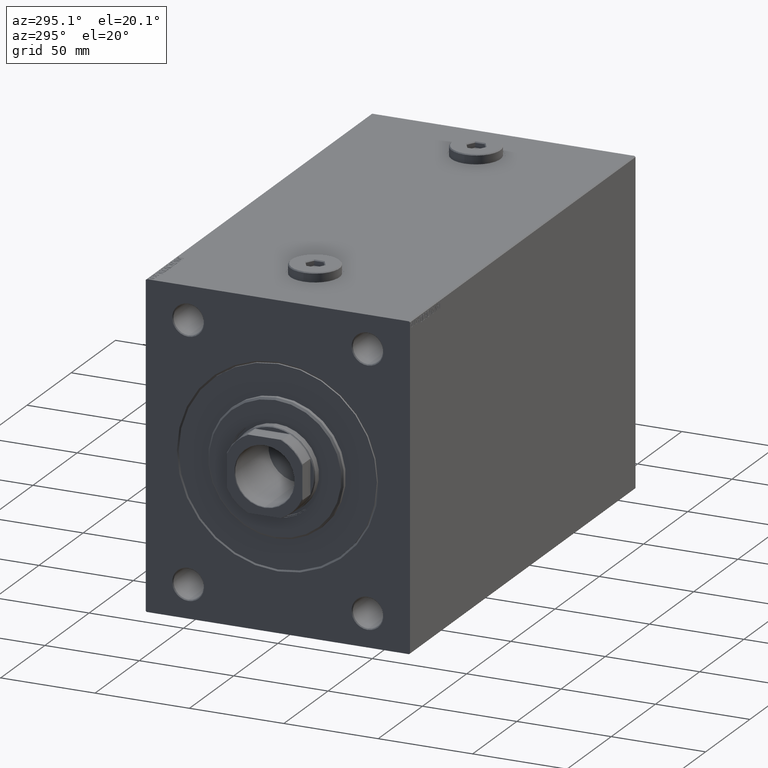
[diagram: clean part render]
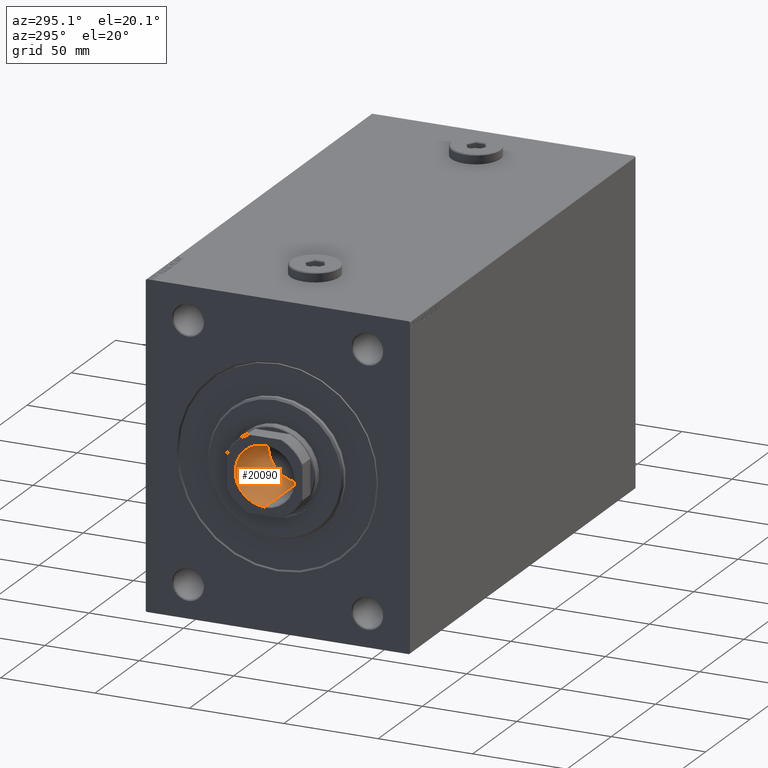
[diagram: same view with one face highlighted and labeled with its STEP entity id]
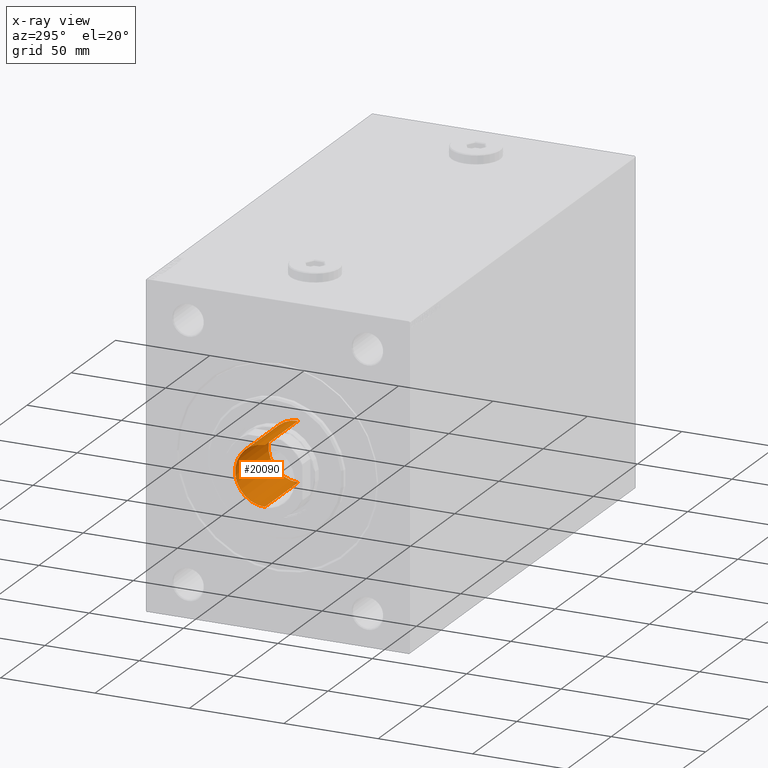
[diagram: x-ray of the same camera — body ghosted, the highlighted face saturated]
A machine part, auxiliary view. The second image highlights one B-rep face of the part: STEP entity #20090.
The next image is the same camera in x-ray: the body ghosted, the highlighted face saturated — about 1% of this face is hidden behind the body in this view.
In plain terms, the highlighted cylindrical surface (edge-blend (fillet) strip) has radius 15.75 mm, axis along (-1, 0, 0).
Its self-contained STEP definition (entity closure, byte-faithful):
#1025 = EDGE_CURVE ( 'NONE', #8817, #5963, #23313, .T. ) ;
#1537 = CARTESIAN_POINT ( 'NONE',  ( 15.74999999999999289, 0.000000000000000000, 206.0000000000000284 ) ) ;
#2769 = DIRECTION ( 'NONE',  ( -0.000000000000000000, -0.000000000000000000, 1.000000000000000000 ) ) ;
#5963 = VERTEX_POINT ( 'NONE', #41206 ) ;
#6046 = VECTOR ( 'NONE', #30828, 1000.000000000000000 ) ;
#6052 = CARTESIAN_POINT ( 'NONE',  ( 15.74999999999999289, 0.000000000000000000, 243.6999999999999602 ) ) ;
#6255 = VERTEX_POINT ( 'NONE', #6052 ) ;
#6469 = CYLINDRICAL_SURFACE ( 'NONE', #27394, 15.74999999999999289 ) ;
#6989 = CARTESIAN_POINT ( 'NONE',  ( -15.74999999999999289, 1.928818708657080556E-15, 243.6999999999999602 ) ) ;
#8713 = VECTOR ( 'NONE', #34461, 1000.000000000000000 ) ;
#8745 = AXIS2_PLACEMENT_3D ( 'NONE', #24151, #41498, #10302 ) ;
#8814 = ORIENTED_EDGE ( 'NONE', *, *, #19584, .T. ) ;
#8817 = VERTEX_POINT ( 'NONE', #1537 ) ;
#9697 = CARTESIAN_POINT ( 'NONE',  ( 0.000000000000000000, 0.000000000000000000, 244.0000000000000284 ) ) ;
#10302 = DIRECTION ( 'NONE',  ( 1.000000000000000000, 0.000000000000000000, 0.000000000000000000 ) ) ;
#10567 = ORIENTED_EDGE ( 'NONE', *, *, #44106, .T. ) ;
#12989 = CARTESIAN_POINT ( 'NONE',  ( -15.74999999999999289, 1.928818708657080556E-15, 244.0000000000000284 ) ) ;
#14654 = DIRECTION ( 'NONE',  ( -0.000000000000000000, -0.000000000000000000, 1.000000000000000000 ) ) ;
#14666 = ORIENTED_EDGE ( 'NONE', *, *, #1025, .F. ) ;
#16619 = FACE_OUTER_BOUND ( 'NONE', #37180, .T. ) ;
#19584 = EDGE_CURVE ( 'NONE', #8817, #6255, #37771, .T. ) ;
#20090 = ADVANCED_FACE ( 'NONE', ( #16619 ), #6469, .F. ) ;
#22700 = VERTEX_POINT ( 'NONE', #6989 ) ;
#23313 = CIRCLE ( 'NONE', #35133, 15.74999999999999289 ) ;
#24151 = CARTESIAN_POINT ( 'NONE',  ( 0.000000000000000000, 0.000000000000000000, 243.6999999999999602 ) ) ;
#24703 = DIRECTION ( 'NONE',  ( 1.000000000000000000, 0.000000000000000000, 0.000000000000000000 ) ) ;
#27394 = AXIS2_PLACEMENT_3D ( 'NONE', #9697, #2769, #24703 ) ;
#28644 = CIRCLE ( 'NONE', #8745, 15.74999999999999289 ) ;
#30828 = DIRECTION ( 'NONE',  ( -0.000000000000000000, -0.000000000000000000, 1.000000000000000000 ) ) ;
#33345 = CARTESIAN_POINT ( 'NONE',  ( 0.000000000000000000, 0.000000000000000000, 206.0000000000000284 ) ) ;
#34292 = CARTESIAN_POINT ( 'NONE',  ( 15.74999999999999289, 0.000000000000000000, 244.0000000000000284 ) ) ;
#34461 = DIRECTION ( 'NONE',  ( -0.000000000000000000, -0.000000000000000000, 1.000000000000000000 ) ) ;
#35133 = AXIS2_PLACEMENT_3D ( 'NONE', #33345, #14654, #42851 ) ;
#37180 = EDGE_LOOP ( 'NONE', ( #38136, #14666, #8814, #10567 ) ) ;
#37771 = LINE ( 'NONE', #34292, #6046 ) ;
#38136 = ORIENTED_EDGE ( 'NONE', *, *, #39673, .F. ) ;
#39673 = EDGE_CURVE ( 'NONE', #5963, #22700, #41633, .T. ) ;
#41206 = CARTESIAN_POINT ( 'NONE',  ( -15.74999999999999289, 1.928818708657080556E-15, 206.0000000000000284 ) ) ;
#41498 = DIRECTION ( 'NONE',  ( 0.000000000000000000, 0.000000000000000000, 1.000000000000000000 ) ) ;
#41633 = LINE ( 'NONE', #12989, #8713 ) ;
#42851 = DIRECTION ( 'NONE',  ( 1.000000000000000000, 0.000000000000000000, 0.000000000000000000 ) ) ;
#44106 = EDGE_CURVE ( 'NONE', #6255, #22700, #28644, .T. ) ;